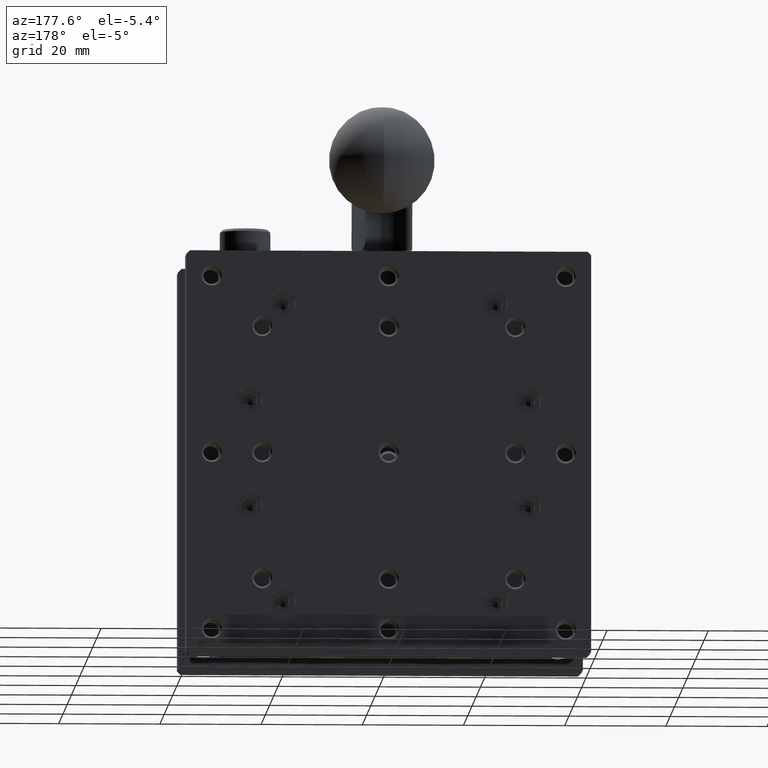
[diagram: clean part render]
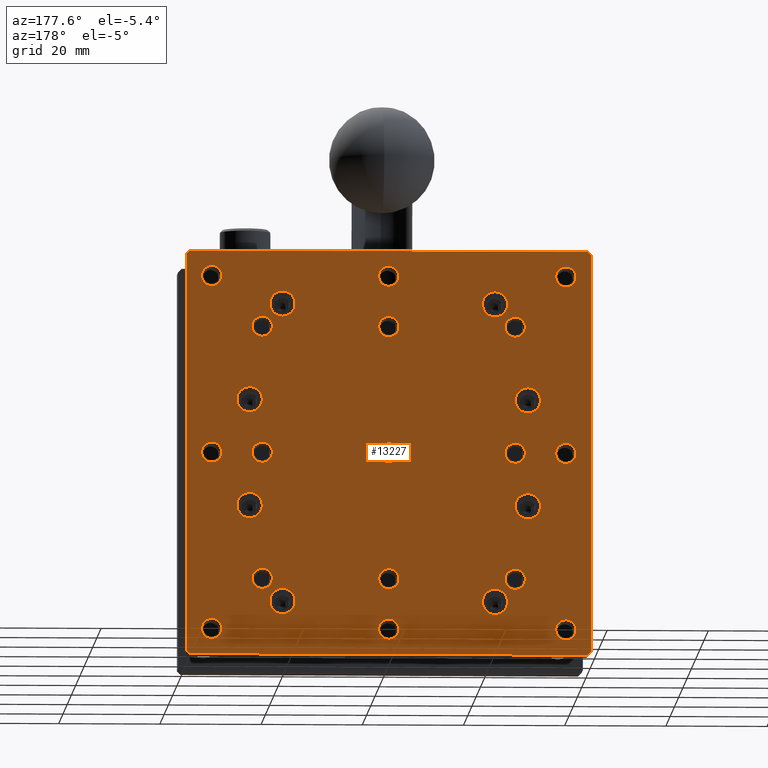
[diagram: same view with one face highlighted and labeled with its STEP entity id]
A machine part, auxiliary view. The second image highlights one B-rep face of the part: STEP entity #13227.
In plain terms, the highlighted planar face has unit normal (0, 1, 0).
Its self-contained STEP definition (entity closure, byte-faithful):
#75 = EDGE_CURVE ( 'NONE', #8777, #8777, #12114, .T. ) ;
#78 = DIRECTION ( 'NONE',  ( 0.000000000000000000, 0.000000000000000000, 1.000000000000000000 ) ) ;
#88 = CARTESIAN_POINT ( 'NONE',  ( 15.00000000000000000, 44.99999999994315658, -40.00000000000000000 ) ) ;
#92 = VERTEX_POINT ( 'NONE', #7836 ) ;
#129 = FACE_BOUND ( 'NONE', #11140, .T. ) ;
#136 = CARTESIAN_POINT ( 'NONE',  ( 15.00000000000000000, 44.99999999994315658, -63.00000000004501999 ) ) ;
#159 = CARTESIAN_POINT ( 'NONE',  ( 12.50000000000000000, 45.00000000000000000, -32.00000000000000000 ) ) ;
#182 = CIRCLE ( 'NONE', #3516, 2.500000000000002220 ) ;
#190 = DIRECTION ( 'NONE',  ( 0.000000000000000000, 0.000000000000000000, 1.000000000000000000 ) ) ;
#208 = FACE_BOUND ( 'NONE', #14128, .T. ) ;
#408 = AXIS2_PLACEMENT_3D ( 'NONE', #11374, #4623, #14652 ) ;
#464 = EDGE_LOOP ( 'NONE', ( #937 ) ) ;
#468 = EDGE_CURVE ( 'NONE', #5584, #5584, #11300, .T. ) ;
#479 = ORIENTED_EDGE ( 'NONE', *, *, #12885, .T. ) ;
#514 = DIRECTION ( 'NONE',  ( 0.000000000000000000, 0.000000000000000000, -1.000000000000000000 ) ) ;
#541 = EDGE_LOOP ( 'NONE', ( #11852 ) ) ;
#550 = EDGE_CURVE ( 'NONE', #2301, #2301, #5857, .T. ) ;
#556 = DIRECTION ( 'NONE',  ( 0.000000000000000000, 0.000000000000000000, -1.000000000000000000 ) ) ;
#569 = CARTESIAN_POINT ( 'NONE',  ( 15.00000000000000000, 45.00000000005684342, -15.00000000000000000 ) ) ;
#604 = CARTESIAN_POINT ( 'NONE',  ( 67.50000000000000000, 45.00000000000000000, -50.50000000000000000 ) ) ;
#727 = CARTESIAN_POINT ( 'NONE',  ( 5.000000000000000000, 44.99999999994315658, -38.00000000006775736 ) ) ;
#749 = CARTESIAN_POINT ( 'NONE',  ( 61.00000000000000000, 45.00000000000000000, -72.00000000000001421 ) ) ;
#815 = DIRECTION ( 'NONE',  ( 0.000000000000000000, -1.000000000000000000, -0.000000000000000000 ) ) ;
#821 = VERTEX_POINT ( 'NONE', #5295 ) ;
#836 = EDGE_CURVE ( 'NONE', #2083, #2083, #10675, .T. ) ;
#866 = DIRECTION ( 'NONE',  ( 0.000000000000000000, 0.000000000000000000, 1.000000000000000000 ) ) ;
#937 = ORIENTED_EDGE ( 'NONE', *, *, #1818, .T. ) ;
#941 = ORIENTED_EDGE ( 'NONE', *, *, #5766, .T. ) ;
#976 = EDGE_LOOP ( 'NONE', ( #11800 ) ) ;
#1035 = FACE_BOUND ( 'NONE', #541, .T. ) ;
#1059 = VERTEX_POINT ( 'NONE', #159 ) ;
#1091 = CIRCLE ( 'NONE', #7969, 2.000000000023191671 ) ;
#1098 = FACE_BOUND ( 'NONE', #6264, .T. ) ;
#1149 = CIRCLE ( 'NONE', #11825, 1.999999999954982233 ) ;
#1229 = EDGE_LOOP ( 'NONE', ( #13144 ) ) ;
#1318 = FACE_BOUND ( 'NONE', #464, .T. ) ;
#1328 = AXIS2_PLACEMENT_3D ( 'NONE', #8112, #3728, #6854 ) ;
#1374 = CARTESIAN_POINT ( 'NONE',  ( 79.29000000000002046, 45.00000000000000000, -8.673617379884033500E-16 ) ) ;
#1396 = DIRECTION ( 'NONE',  ( 0.000000000000000000, -0.000000000000000000, 1.000000000000000000 ) ) ;
#1444 = AXIS2_PLACEMENT_3D ( 'NONE', #5524, #7676, #1953 ) ;
#1461 = EDGE_CURVE ( 'NONE', #6512, #3990, #12406, .T. ) ;
#1497 = DIRECTION ( 'NONE',  ( 0.000000000000000000, -0.000000000000000000, 1.000000000000000000 ) ) ;
#1501 = ORIENTED_EDGE ( 'NONE', *, *, #3037, .T. ) ;
#1511 = CARTESIAN_POINT ( 'NONE',  ( 75.00000000000000000, 45.00000000005684342, -5.000000000000030198 ) ) ;
#1531 = CARTESIAN_POINT ( 'NONE',  ( 19.00000000000000000, 45.00000000000000000, -72.00000000000001421 ) ) ;
#1547 = DIRECTION ( 'NONE',  ( 1.000000000000000000, 0.000000000000000000, -0.000000000000000000 ) ) ;
#1595 = CARTESIAN_POINT ( 'NONE',  ( 40.00000000000000000, 45.00000000005684342, -5.000000000000030198 ) ) ;
#1649 = CIRCLE ( 'NONE', #5464, 1.999999999954982233 ) ;
#1804 = DIRECTION ( 'NONE',  ( 0.000000000000000000, 0.000000000000000000, -1.000000000000000000 ) ) ;
#1818 = EDGE_CURVE ( 'NONE', #6021, #6021, #3033, .T. ) ;
#1882 = CIRCLE ( 'NONE', #10180, 1.999999999954982233 ) ;
#1953 = DIRECTION ( 'NONE',  ( 0.000000000000000000, 0.000000000000000000, 1.000000000000000000 ) ) ;
#1967 = LINE ( 'NONE', #4134, #13594 ) ;
#2051 = EDGE_LOOP ( 'NONE', ( #9113 ) ) ;
#2073 = DIRECTION ( 'NONE',  ( 0.000000000000000000, -1.000000000000000000, -0.000000000000000000 ) ) ;
#2083 = VERTEX_POINT ( 'NONE', #2377 ) ;
#2096 = ORIENTED_EDGE ( 'NONE', *, *, #4746, .T. ) ;
#2157 = FACE_BOUND ( 'NONE', #14358, .T. ) ;
#2171 = VECTOR ( 'NONE', #3875, 1000.000000000000000 ) ;
#2245 = ORIENTED_EDGE ( 'NONE', *, *, #468, .T. ) ;
#2292 = FACE_BOUND ( 'NONE', #2051, .T. ) ;
#2301 = VERTEX_POINT ( 'NONE', #3212 ) ;
#2340 = CIRCLE ( 'NONE', #11126, 1.999999999932243533 ) ;
#2377 = CARTESIAN_POINT ( 'NONE',  ( 40.00000000000000000, 45.00000000005684342, -2.999999999985902832 ) ) ;
#2426 = CARTESIAN_POINT ( 'NONE',  ( 5.000000000000000000, 45.00000000005684342, -5.000000000000000000 ) ) ;
#2454 = DIRECTION ( 'NONE',  ( 0.000000000000000000, -1.000000000000000000, -0.000000000000000000 ) ) ;
#2458 = ORIENTED_EDGE ( 'NONE', *, *, #4188, .T. ) ;
#2490 = VERTEX_POINT ( 'NONE', #12402 ) ;
#2556 = AXIS2_PLACEMENT_3D ( 'NONE', #6076, #2587, #1396 ) ;
#2570 = DIRECTION ( 'NONE',  ( 0.000000000000000000, 0.000000000000000000, 1.000000000000000000 ) ) ;
#2587 = DIRECTION ( 'NONE',  ( 0.000000000000000000, 1.000000000000000000, 0.000000000000000000 ) ) ;
#2655 = CARTESIAN_POINT ( 'NONE',  ( 65.00000000000000000, 44.99999999994315658, -63.00000000004501999 ) ) ;
#2810 = VERTEX_POINT ( 'NONE', #13426 ) ;
#2925 = EDGE_CURVE ( 'NONE', #8388, #8388, #1149, .T. ) ;
#3007 = DIRECTION ( 'NONE',  ( 0.000000000000000000, -1.000000000000000000, 0.000000000000000000 ) ) ;
#3033 = CIRCLE ( 'NONE', #11326, 1.999999999932243533 ) ;
#3037 = EDGE_CURVE ( 'NONE', #14171, #14171, #2340, .T. ) ;
#3084 = CARTESIAN_POINT ( 'NONE',  ( 40.00000000000000000, 44.99999999994315658, -63.00000000004501999 ) ) ;
#3099 = LINE ( 'NONE', #7624, #12060 ) ;
#3117 = DIRECTION ( 'NONE',  ( 0.000000000000000000, 0.000000000000000000, 1.000000000000000000 ) ) ;
#3121 = DIRECTION ( 'NONE',  ( 0.000000000000000000, -1.000000000000000000, -0.000000000000000000 ) ) ;
#3158 = DIRECTION ( 'NONE',  ( 0.000000000000000000, -1.000000000000000000, 0.000000000000000000 ) ) ;
#3212 = CARTESIAN_POINT ( 'NONE',  ( 61.00000000000000000, 45.00000000000000000, -13.00000000000000178 ) ) ;
#3221 = EDGE_CURVE ( 'NONE', #6512, #7089, #3099, .T. ) ;
#3226 = ORIENTED_EDGE ( 'NONE', *, *, #8983, .F. ) ;
#3284 = VERTEX_POINT ( 'NONE', #13660 ) ;
#3349 = FACE_BOUND ( 'NONE', #9816, .T. ) ;
#3369 = CARTESIAN_POINT ( 'NONE',  ( 0.7099999999999939693, 45.00000000000000000, -80.00000000000000000 ) ) ;
#3419 = EDGE_LOOP ( 'NONE', ( #13659 ) ) ;
#3516 = AXIS2_PLACEMENT_3D ( 'NONE', #604, #3158, #13242 ) ;
#3583 = ORIENTED_EDGE ( 'NONE', *, *, #11641, .T. ) ;
#3728 = DIRECTION ( 'NONE',  ( 0.000000000000000000, -1.000000000000000000, -0.000000000000000000 ) ) ;
#3729 = EDGE_CURVE ( 'NONE', #12012, #12012, #11075, .T. ) ;
#3735 = AXIS2_PLACEMENT_3D ( 'NONE', #11469, #4861, #13772 ) ;
#3752 = ORIENTED_EDGE ( 'NONE', *, *, #75, .T. ) ;
#3795 = LINE ( 'NONE', #7262, #5129 ) ;
#3853 = EDGE_CURVE ( 'NONE', #7412, #7412, #10114, .T. ) ;
#3875 = DIRECTION ( 'NONE',  ( -1.000000000000000000, -0.000000000000000000, 0.000000000000000000 ) ) ;
#3888 = EDGE_LOOP ( 'NONE', ( #3980 ) ) ;
#3963 = EDGE_LOOP ( 'NONE', ( #3752 ) ) ;
#3980 = ORIENTED_EDGE ( 'NONE', *, *, #3729, .T. ) ;
#3990 = VERTEX_POINT ( 'NONE', #9654 ) ;
#3997 = DIRECTION ( 'NONE',  ( 0.000000000000000000, -1.000000000000000000, -0.000000000000000000 ) ) ;
#4134 = CARTESIAN_POINT ( 'NONE',  ( 80.00000000000000000, 45.00000000000000000, -79.29000000000000625 ) ) ;
#4142 = CARTESIAN_POINT ( 'NONE',  ( 67.50000000000000000, 45.00000000000000000, -29.50000000000000355 ) ) ;
#4156 = CARTESIAN_POINT ( 'NONE',  ( 65.00000000000000000, 44.99999999994315658, -65.00000000000000000 ) ) ;
#4160 = DIRECTION ( 'NONE',  ( 0.000000000000000000, -1.000000000000000000, -0.000000000000000000 ) ) ;
#4188 = EDGE_CURVE ( 'NONE', #2810, #2810, #10598, .T. ) ;
#4194 = ORIENTED_EDGE ( 'NONE', *, *, #10943, .F. ) ;
#4296 = AXIS2_PLACEMENT_3D ( 'NONE', #1595, #10666, #2570 ) ;
#4453 = CARTESIAN_POINT ( 'NONE',  ( 75.00000000000000000, 45.00000000005684342, -2.999999999985902832 ) ) ;
#4500 = EDGE_CURVE ( 'NONE', #11135, #11135, #14173, .T. ) ;
#4518 = ORIENTED_EDGE ( 'NONE', *, *, #3221, .F. ) ;
#4532 = AXIS2_PLACEMENT_3D ( 'NONE', #6178, #9518, #514 ) ;
#4539 = FACE_BOUND ( 'NONE', #8649, .T. ) ;
#4623 = DIRECTION ( 'NONE',  ( 0.000000000000000000, -1.000000000000000000, 0.000000000000000000 ) ) ;
#4647 = EDGE_LOOP ( 'NONE', ( #14512 ) ) ;
#4662 = DIRECTION ( 'NONE',  ( 0.000000000000000000, 0.000000000000000000, 1.000000000000000000 ) ) ;
#4673 = FACE_BOUND ( 'NONE', #14282, .T. ) ;
#4746 = EDGE_CURVE ( 'NONE', #13502, #13502, #13471, .T. ) ;
#4861 = DIRECTION ( 'NONE',  ( 0.000000000000000000, -1.000000000000000000, -0.000000000000000000 ) ) ;
#4867 = VERTEX_POINT ( 'NONE', #7608 ) ;
#4868 = ORIENTED_EDGE ( 'NONE', *, *, #1461, .T. ) ;
#4894 = DIRECTION ( 'NONE',  ( 0.000000000000000000, 0.000000000000000000, -1.000000000000000000 ) ) ;
#5076 = EDGE_LOOP ( 'NONE', ( #14578 ) ) ;
#5129 = VECTOR ( 'NONE', #1547, 1000.000000000000000 ) ;
#5179 = EDGE_CURVE ( 'NONE', #10013, #10013, #10635, .T. ) ;
#5195 = AXIS2_PLACEMENT_3D ( 'NONE', #9587, #12589, #9107 ) ;
#5212 = EDGE_CURVE ( 'NONE', #4867, #9092, #7142, .T. ) ;
#5295 = CARTESIAN_POINT ( 'NONE',  ( 5.000000000000000000, 44.99999999994315658, -73.00000000003592504 ) ) ;
#5363 = EDGE_LOOP ( 'NONE', ( #479 ) ) ;
#5464 = AXIS2_PLACEMENT_3D ( 'NONE', #4156, #3121, #866 ) ;
#5465 = VERTEX_POINT ( 'NONE', #12255 ) ;
#5493 = DIRECTION ( 'NONE',  ( 0.000000000000000000, -1.000000000000000000, -0.000000000000000000 ) ) ;
#5524 = CARTESIAN_POINT ( 'NONE',  ( 40.00000000000000000, 45.00000000005684342, -15.00000000000000000 ) ) ;
#5576 = PLANE ( 'NONE',  #2556 ) ;
#5584 = VERTEX_POINT ( 'NONE', #13379 ) ;
#5704 = CARTESIAN_POINT ( 'NONE',  ( 15.00000000000000000, 44.99999999994315658, -65.00000000000000000 ) ) ;
#5766 = EDGE_CURVE ( 'NONE', #8152, #8152, #1649, .T. ) ;
#5789 = FACE_BOUND ( 'NONE', #11255, .T. ) ;
#5857 = CIRCLE ( 'NONE', #7759, 2.500000000000000444 ) ;
#5960 = VECTOR ( 'NONE', #13389, 1000.000000000000000 ) ;
#5967 = VERTEX_POINT ( 'NONE', #13981 ) ;
#6021 = VERTEX_POINT ( 'NONE', #13741 ) ;
#6051 = EDGE_CURVE ( 'NONE', #13523, #9092, #11711, .T. ) ;
#6076 = CARTESIAN_POINT ( 'NONE',  ( 0.000000000000000000, 45.00000000000000000, 0.000000000000000000 ) ) ;
#6153 = ORIENTED_EDGE ( 'NONE', *, *, #11503, .T. ) ;
#6167 = EDGE_CURVE ( 'NONE', #7030, #7030, #12777, .T. ) ;
#6178 = CARTESIAN_POINT ( 'NONE',  ( 12.50000000000000000, 45.00000000000000000, -50.50000000000000000 ) ) ;
#6255 = ORIENTED_EDGE ( 'NONE', *, *, #6167, .T. ) ;
#6264 = EDGE_LOOP ( 'NONE', ( #941 ) ) ;
#6395 = CARTESIAN_POINT ( 'NONE',  ( 80.00000000000000000, 45.00000000000000000, 0.000000000000000000 ) ) ;
#6412 = ORIENTED_EDGE ( 'NONE', *, *, #5212, .T. ) ;
#6426 = DIRECTION ( 'NONE',  ( 0.7071067811865474617, -0.000000000000000000, 0.7071067811865474617 ) ) ;
#6495 = DIRECTION ( 'NONE',  ( 0.000000000000000000, -1.000000000000000000, -0.000000000000000000 ) ) ;
#6509 = DIRECTION ( 'NONE',  ( -0.7071067811865420216, -0.000000000000000000, 0.7071067811865531239 ) ) ;
#6512 = VERTEX_POINT ( 'NONE', #11345 ) ;
#6643 = VERTEX_POINT ( 'NONE', #11174 ) ;
#6845 = CARTESIAN_POINT ( 'NONE',  ( 0.000000000000000000, 45.00000000000000000, -0.7099999999999925260 ) ) ;
#6854 = DIRECTION ( 'NONE',  ( 0.000000000000000000, 0.000000000000000000, 1.000000000000000000 ) ) ;
#6956 = VECTOR ( 'NONE', #11067, 1000.000000000000000 ) ;
#6973 = FACE_BOUND ( 'NONE', #3419, .T. ) ;
#7030 = VERTEX_POINT ( 'NONE', #1531 ) ;
#7089 = VERTEX_POINT ( 'NONE', #1374 ) ;
#7142 = LINE ( 'NONE', #11670, #14444 ) ;
#7174 = CARTESIAN_POINT ( 'NONE',  ( 75.00000000000000000, 44.99999999994315658, -40.00000000000000000 ) ) ;
#7242 = DIRECTION ( 'NONE',  ( -0.7071067811865505703, -0.000000000000000000, -0.7071067811865444641 ) ) ;
#7262 = CARTESIAN_POINT ( 'NONE',  ( 0.000000000000000000, 45.00000000000000000, 0.000000000000000000 ) ) ;
#7412 = VERTEX_POINT ( 'NONE', #10983 ) ;
#7608 = CARTESIAN_POINT ( 'NONE',  ( -1.531435568635775013E-15, 45.00000000000000000, -79.29000000000000625 ) ) ;
#7622 = ORIENTED_EDGE ( 'NONE', *, *, #11794, .T. ) ;
#7624 = CARTESIAN_POINT ( 'NONE',  ( 79.29000000000000625, 45.00000000000000000, 0.000000000000000000 ) ) ;
#7676 = DIRECTION ( 'NONE',  ( 0.000000000000000000, -1.000000000000000000, -0.000000000000000000 ) ) ;
#7736 = ORIENTED_EDGE ( 'NONE', *, *, #6051, .F. ) ;
#7746 = DIRECTION ( 'NONE',  ( 0.000000000000000000, 0.000000000000000000, 1.000000000000000000 ) ) ;
#7751 = AXIS2_PLACEMENT_3D ( 'NONE', #8839, #4160, #13366 ) ;
#7759 = AXIS2_PLACEMENT_3D ( 'NONE', #14548, #12091, #10979 ) ;
#7836 = CARTESIAN_POINT ( 'NONE',  ( 40.00000000000000000, 45.00000000005684342, -12.99999999997680789 ) ) ;
#7932 = DIRECTION ( 'NONE',  ( 0.000000000000000000, 0.000000000000000000, 1.000000000000000000 ) ) ;
#7944 = FACE_BOUND ( 'NONE', #9949, .T. ) ;
#7969 = AXIS2_PLACEMENT_3D ( 'NONE', #13529, #2454, #78 ) ;
#7981 = CIRCLE ( 'NONE', #7751, 1.999999999964072295 ) ;
#8030 = ORIENTED_EDGE ( 'NONE', *, *, #9625, .T. ) ;
#8101 = AXIS2_PLACEMENT_3D ( 'NONE', #10599, #14028, #4894 ) ;
#8112 = CARTESIAN_POINT ( 'NONE',  ( 65.00000000000000000, 44.99999999994315658, -40.00000000000000000 ) ) ;
#8113 = DIRECTION ( 'NONE',  ( 0.000000000000000000, -1.000000000000000000, -0.000000000000000000 ) ) ;
#8142 = EDGE_CURVE ( 'NONE', #14293, #14293, #1882, .T. ) ;
#8152 = VERTEX_POINT ( 'NONE', #2655 ) ;
#8180 = DIRECTION ( 'NONE',  ( 0.000000000000000000, 0.000000000000000000, 1.000000000000000000 ) ) ;
#8227 = AXIS2_PLACEMENT_3D ( 'NONE', #2426, #815, #4662 ) ;
#8270 = DIRECTION ( 'NONE',  ( 0.000000000000000000, -1.000000000000000000, -0.000000000000000000 ) ) ;
#8388 = VERTEX_POINT ( 'NONE', #136 ) ;
#8457 = CIRCLE ( 'NONE', #3735, 1.999999999964072295 ) ;
#8462 = LINE ( 'NONE', #11804, #2171 ) ;
#8525 = DIRECTION ( 'NONE',  ( 0.000000000000000000, 0.000000000000000000, 1.000000000000000000 ) ) ;
#8559 = CIRCLE ( 'NONE', #1444, 2.000000000023191671 ) ;
#8600 = CARTESIAN_POINT ( 'NONE',  ( 40.00000000000000000, 44.99999999994315658, -40.00000000000000000 ) ) ;
#8612 = CARTESIAN_POINT ( 'NONE',  ( 40.00000000000000000, 44.99999999994315658, -65.00000000000000000 ) ) ;
#8628 = EDGE_CURVE ( 'NONE', #6643, #6643, #13746, .T. ) ;
#8649 = EDGE_LOOP ( 'NONE', ( #2458 ) ) ;
#8709 = EDGE_LOOP ( 'NONE', ( #12304 ) ) ;
#8717 = CARTESIAN_POINT ( 'NONE',  ( 0.000000000000000000, 45.00000000000000000, -0.7099999999999939693 ) ) ;
#8777 = VERTEX_POINT ( 'NONE', #13306 ) ;
#8839 = CARTESIAN_POINT ( 'NONE',  ( 40.00000000000000000, 44.99999999994315658, -75.00000000000000000 ) ) ;
#8867 = LINE ( 'NONE', #3369, #5960 ) ;
#8915 = EDGE_CURVE ( 'NONE', #92, #92, #8559, .T. ) ;
#8965 = AXIS2_PLACEMENT_3D ( 'NONE', #4142, #10884, #556 ) ;
#8969 = ORIENTED_EDGE ( 'NONE', *, *, #8915, .T. ) ;
#8983 = EDGE_CURVE ( 'NONE', #4867, #2490, #8867, .T. ) ;
#8993 = FACE_BOUND ( 'NONE', #10643, .T. ) ;
#9092 = VERTEX_POINT ( 'NONE', #6845 ) ;
#9107 = DIRECTION ( 'NONE',  ( 0.000000000000000000, 0.000000000000000000, -1.000000000000000000 ) ) ;
#9113 = ORIENTED_EDGE ( 'NONE', *, *, #550, .T. ) ;
#9146 = ORIENTED_EDGE ( 'NONE', *, *, #12431, .T. ) ;
#9198 = FACE_BOUND ( 'NONE', #5076, .T. ) ;
#9266 = EDGE_CURVE ( 'NONE', #5465, #2490, #8462, .T. ) ;
#9278 = FACE_BOUND ( 'NONE', #976, .T. ) ;
#9391 = DIRECTION ( 'NONE',  ( 0.000000000000000000, -1.000000000000000000, -0.000000000000000000 ) ) ;
#9497 = EDGE_LOOP ( 'NONE', ( #11977, #3226, #6412, #7736, #3583, #4518, #4868, #4194 ) ) ;
#9518 = DIRECTION ( 'NONE',  ( 0.000000000000000000, -1.000000000000000000, 0.000000000000000000 ) ) ;
#9587 = CARTESIAN_POINT ( 'NONE',  ( 19.00000000000000000, 45.00000000000000000, -69.50000000000000000 ) ) ;
#9625 = EDGE_CURVE ( 'NONE', #1059, #1059, #14519, .T. ) ;
#9654 = CARTESIAN_POINT ( 'NONE',  ( 80.00000000000001421, 45.00000000000000000, -79.29000000000000625 ) ) ;
#9661 = VERTEX_POINT ( 'NONE', #749 ) ;
#9816 = EDGE_LOOP ( 'NONE', ( #6153 ) ) ;
#9893 = CARTESIAN_POINT ( 'NONE',  ( 5.000000000000000000, 44.99999999994315658, -40.00000000000000000 ) ) ;
#9949 = EDGE_LOOP ( 'NONE', ( #1501 ) ) ;
#10013 = VERTEX_POINT ( 'NONE', #12457 ) ;
#10088 = FACE_BOUND ( 'NONE', #8709, .T. ) ;
#10114 = CIRCLE ( 'NONE', #1328, 1.999999999932243533 ) ;
#10162 = FACE_BOUND ( 'NONE', #11929, .T. ) ;
#10180 = AXIS2_PLACEMENT_3D ( 'NONE', #8612, #2073, #13205 ) ;
#10221 = CARTESIAN_POINT ( 'NONE',  ( 0.7099999999999999645, 45.00000000000000000, 0.000000000000000000 ) ) ;
#10304 = FACE_BOUND ( 'NONE', #4647, .T. ) ;
#10377 = FACE_BOUND ( 'NONE', #11101, .T. ) ;
#10423 = DIRECTION ( 'NONE',  ( 0.000000000000000000, 0.000000000000000000, 1.000000000000000000 ) ) ;
#10525 = CARTESIAN_POINT ( 'NONE',  ( 61.00000000000000000, 45.00000000000000000, -69.50000000000000000 ) ) ;
#10598 = CIRCLE ( 'NONE', #8227, 2.000000000014097168 ) ;
#10599 = CARTESIAN_POINT ( 'NONE',  ( 12.50000000000000000, 45.00000000000000000, -29.50000000000000355 ) ) ;
#10635 = CIRCLE ( 'NONE', #12769, 1.999999999932243533 ) ;
#10643 = EDGE_LOOP ( 'NONE', ( #8969 ) ) ;
#10666 = DIRECTION ( 'NONE',  ( 0.000000000000000000, -1.000000000000000000, -0.000000000000000000 ) ) ;
#10675 = CIRCLE ( 'NONE', #4296, 2.000000000014127810 ) ;
#10820 = AXIS2_PLACEMENT_3D ( 'NONE', #9893, #6495, #7746 ) ;
#10853 = AXIS2_PLACEMENT_3D ( 'NONE', #1511, #9391, #12666 ) ;
#10884 = DIRECTION ( 'NONE',  ( 0.000000000000000000, -1.000000000000000000, 0.000000000000000000 ) ) ;
#10943 = EDGE_CURVE ( 'NONE', #5465, #3990, #1967, .T. ) ;
#10979 = DIRECTION ( 'NONE',  ( 0.000000000000000000, 0.000000000000000000, -1.000000000000000000 ) ) ;
#10983 = CARTESIAN_POINT ( 'NONE',  ( 65.00000000000000000, 44.99999999994315658, -38.00000000006775736 ) ) ;
#11067 = DIRECTION ( 'NONE',  ( -0.000000000000000000, 0.000000000000000000, -1.000000000000000000 ) ) ;
#11074 = VERTEX_POINT ( 'NONE', #11960 ) ;
#11075 = CIRCLE ( 'NONE', #10820, 1.999999999932243533 ) ;
#11101 = EDGE_LOOP ( 'NONE', ( #2245 ) ) ;
#11126 = AXIS2_PLACEMENT_3D ( 'NONE', #7174, #13861, #190 ) ;
#11135 = VERTEX_POINT ( 'NONE', #13577 ) ;
#11140 = EDGE_LOOP ( 'NONE', ( #2096 ) ) ;
#11174 = CARTESIAN_POINT ( 'NONE',  ( 75.00000000000000000, 44.99999999994315658, -73.00000000003592504 ) ) ;
#11255 = EDGE_LOOP ( 'NONE', ( #13029 ) ) ;
#11300 = CIRCLE ( 'NONE', #12006, 2.000000000023191671 ) ;
#11326 = AXIS2_PLACEMENT_3D ( 'NONE', #8600, #14325, #3117 ) ;
#11345 = CARTESIAN_POINT ( 'NONE',  ( 80.00000000000000000, 45.00000000000000000, -0.7099999999999998535 ) ) ;
#11374 = CARTESIAN_POINT ( 'NONE',  ( 19.00000000000000000, 45.00000000000000000, -10.50000000000000000 ) ) ;
#11469 = CARTESIAN_POINT ( 'NONE',  ( 5.000000000000000000, 44.99999999994315658, -75.00000000000000000 ) ) ;
#11498 = FACE_BOUND ( 'NONE', #3888, .T. ) ;
#11503 = EDGE_CURVE ( 'NONE', #5967, #5967, #1091, .T. ) ;
#11534 = CARTESIAN_POINT ( 'NONE',  ( 75.00000000000000000, 44.99999999994315658, -75.00000000000000000 ) ) ;
#11641 = EDGE_CURVE ( 'NONE', #13523, #7089, #3795, .T. ) ;
#11670 = CARTESIAN_POINT ( 'NONE',  ( 0.000000000000000000, 45.00000000000000000, 0.000000000000000000 ) ) ;
#11711 = LINE ( 'NONE', #8717, #12560 ) ;
#11794 = EDGE_CURVE ( 'NONE', #11074, #11074, #7981, .T. ) ;
#11800 = ORIENTED_EDGE ( 'NONE', *, *, #14133, .T. ) ;
#11804 = CARTESIAN_POINT ( 'NONE',  ( 0.000000000000000000, 45.00000000000000000, -80.00000000000000000 ) ) ;
#11825 = AXIS2_PLACEMENT_3D ( 'NONE', #5704, #5493, #7932 ) ;
#11852 = ORIENTED_EDGE ( 'NONE', *, *, #12151, .T. ) ;
#11929 = EDGE_LOOP ( 'NONE', ( #11976 ) ) ;
#11960 = CARTESIAN_POINT ( 'NONE',  ( 40.00000000000000000, 44.99999999994315658, -73.00000000003592504 ) ) ;
#11976 = ORIENTED_EDGE ( 'NONE', *, *, #5179, .T. ) ;
#11977 = ORIENTED_EDGE ( 'NONE', *, *, #9266, .T. ) ;
#12006 = AXIS2_PLACEMENT_3D ( 'NONE', #569, #3997, #8525 ) ;
#12012 = VERTEX_POINT ( 'NONE', #727 ) ;
#12060 = VECTOR ( 'NONE', #6509, 999.9999999999998863 ) ;
#12091 = DIRECTION ( 'NONE',  ( 0.000000000000000000, -1.000000000000000000, 0.000000000000000000 ) ) ;
#12114 = CIRCLE ( 'NONE', #4532, 2.500000000000002220 ) ;
#12151 = EDGE_CURVE ( 'NONE', #9661, #9661, #14637, .T. ) ;
#12255 = CARTESIAN_POINT ( 'NONE',  ( 79.29000000000000625, 45.00000000000000000, -80.00000000000000000 ) ) ;
#12304 = ORIENTED_EDGE ( 'NONE', *, *, #4500, .T. ) ;
#12327 = FACE_BOUND ( 'NONE', #12873, .T. ) ;
#12340 = VERTEX_POINT ( 'NONE', #13525 ) ;
#12402 = CARTESIAN_POINT ( 'NONE',  ( 0.7099999999999988542, 45.00000000000000000, -80.00000000000000000 ) ) ;
#12406 = LINE ( 'NONE', #6395, #6956 ) ;
#12431 = EDGE_CURVE ( 'NONE', #821, #821, #8457, .T. ) ;
#12457 = CARTESIAN_POINT ( 'NONE',  ( 15.00000000000000000, 44.99999999994315658, -38.00000000006775736 ) ) ;
#12465 = FACE_BOUND ( 'NONE', #1229, .T. ) ;
#12560 = VECTOR ( 'NONE', #7242, 1000.000000000000114 ) ;
#12589 = DIRECTION ( 'NONE',  ( 0.000000000000000000, -1.000000000000000000, 0.000000000000000000 ) ) ;
#12666 = DIRECTION ( 'NONE',  ( 0.000000000000000000, 0.000000000000000000, 1.000000000000000000 ) ) ;
#12769 = AXIS2_PLACEMENT_3D ( 'NONE', #88, #8113, #8180 ) ;
#12777 = CIRCLE ( 'NONE', #5195, 2.500000000000002220 ) ;
#12873 = EDGE_LOOP ( 'NONE', ( #9146 ) ) ;
#12885 = EDGE_CURVE ( 'NONE', #12340, #12340, #13219, .T. ) ;
#13025 = AXIS2_PLACEMENT_3D ( 'NONE', #11534, #8270, #10423 ) ;
#13029 = ORIENTED_EDGE ( 'NONE', *, *, #3853, .T. ) ;
#13051 = CARTESIAN_POINT ( 'NONE',  ( 75.00000000000000000, 44.99999999994315658, -38.00000000006775736 ) ) ;
#13144 = ORIENTED_EDGE ( 'NONE', *, *, #8628, .T. ) ;
#13197 = AXIS2_PLACEMENT_3D ( 'NONE', #10525, #3007, #1804 ) ;
#13205 = DIRECTION ( 'NONE',  ( 0.000000000000000000, 0.000000000000000000, 1.000000000000000000 ) ) ;
#13219 = CIRCLE ( 'NONE', #408, 2.500000000000000444 ) ;
#13227 = ADVANCED_FACE ( 'NONE', ( #13730, #4539, #6973, #8993, #3349, #5789, #1098, #9198, #10304, #10162, #129, #7944, #12465, #4673, #12327, #11498, #1318, #10377, #208, #10088, #9278, #14632, #13806, #2292, #1035, #2157 ), #5576, .T. ) ;
#13242 = DIRECTION ( 'NONE',  ( 0.000000000000000000, 0.000000000000000000, -1.000000000000000000 ) ) ;
#13306 = CARTESIAN_POINT ( 'NONE',  ( 12.50000000000000000, 45.00000000000000000, -53.00000000000000711 ) ) ;
#13366 = DIRECTION ( 'NONE',  ( 0.000000000000000000, 0.000000000000000000, 1.000000000000000000 ) ) ;
#13379 = CARTESIAN_POINT ( 'NONE',  ( 15.00000000000000000, 45.00000000005684342, -12.99999999997680789 ) ) ;
#13389 = DIRECTION ( 'NONE',  ( 0.7071067811865500152, -0.000000000000000000, -0.7071067811865450192 ) ) ;
#13426 = CARTESIAN_POINT ( 'NONE',  ( 5.000000000000000000, 45.00000000005684342, -2.999999999985902832 ) ) ;
#13471 = CIRCLE ( 'NONE', #10853, 2.000000000014127810 ) ;
#13502 = VERTEX_POINT ( 'NONE', #4453 ) ;
#13523 = VERTEX_POINT ( 'NONE', #10221 ) ;
#13525 = CARTESIAN_POINT ( 'NONE',  ( 19.00000000000000000, 45.00000000000000000, -13.00000000000000178 ) ) ;
#13529 = CARTESIAN_POINT ( 'NONE',  ( 65.00000000000000000, 45.00000000005684342, -15.00000000000000000 ) ) ;
#13577 = CARTESIAN_POINT ( 'NONE',  ( 67.50000000000000000, 45.00000000000000000, -32.00000000000000000 ) ) ;
#13594 = VECTOR ( 'NONE', #6426, 1000.000000000000114 ) ;
#13659 = ORIENTED_EDGE ( 'NONE', *, *, #836, .T. ) ;
#13660 = CARTESIAN_POINT ( 'NONE',  ( 67.50000000000000000, 45.00000000000000000, -53.00000000000000711 ) ) ;
#13730 = FACE_OUTER_BOUND ( 'NONE', #9497, .T. ) ;
#13741 = CARTESIAN_POINT ( 'NONE',  ( 40.00000000000000000, 44.99999999994315658, -38.00000000006775736 ) ) ;
#13746 = CIRCLE ( 'NONE', #13025, 1.999999999964072295 ) ;
#13772 = DIRECTION ( 'NONE',  ( 0.000000000000000000, 0.000000000000000000, 1.000000000000000000 ) ) ;
#13806 = FACE_BOUND ( 'NONE', #5363, .T. ) ;
#13861 = DIRECTION ( 'NONE',  ( 0.000000000000000000, -1.000000000000000000, -0.000000000000000000 ) ) ;
#13981 = CARTESIAN_POINT ( 'NONE',  ( 65.00000000000000000, 45.00000000005684342, -12.99999999997680789 ) ) ;
#14028 = DIRECTION ( 'NONE',  ( 0.000000000000000000, -1.000000000000000000, 0.000000000000000000 ) ) ;
#14128 = EDGE_LOOP ( 'NONE', ( #8030 ) ) ;
#14133 = EDGE_CURVE ( 'NONE', #3284, #3284, #182, .T. ) ;
#14171 = VERTEX_POINT ( 'NONE', #13051 ) ;
#14173 = CIRCLE ( 'NONE', #8965, 2.499999999999998668 ) ;
#14282 = EDGE_LOOP ( 'NONE', ( #7622 ) ) ;
#14293 = VERTEX_POINT ( 'NONE', #3084 ) ;
#14325 = DIRECTION ( 'NONE',  ( 0.000000000000000000, -1.000000000000000000, -0.000000000000000000 ) ) ;
#14358 = EDGE_LOOP ( 'NONE', ( #6255 ) ) ;
#14444 = VECTOR ( 'NONE', #1497, 1000.000000000000000 ) ;
#14512 = ORIENTED_EDGE ( 'NONE', *, *, #2925, .T. ) ;
#14519 = CIRCLE ( 'NONE', #8101, 2.499999999999998668 ) ;
#14548 = CARTESIAN_POINT ( 'NONE',  ( 61.00000000000000000, 45.00000000000000000, -10.50000000000000000 ) ) ;
#14578 = ORIENTED_EDGE ( 'NONE', *, *, #8142, .T. ) ;
#14632 = FACE_BOUND ( 'NONE', #3963, .T. ) ;
#14637 = CIRCLE ( 'NONE', #13197, 2.500000000000002220 ) ;
#14652 = DIRECTION ( 'NONE',  ( 0.000000000000000000, 0.000000000000000000, -1.000000000000000000 ) ) ;